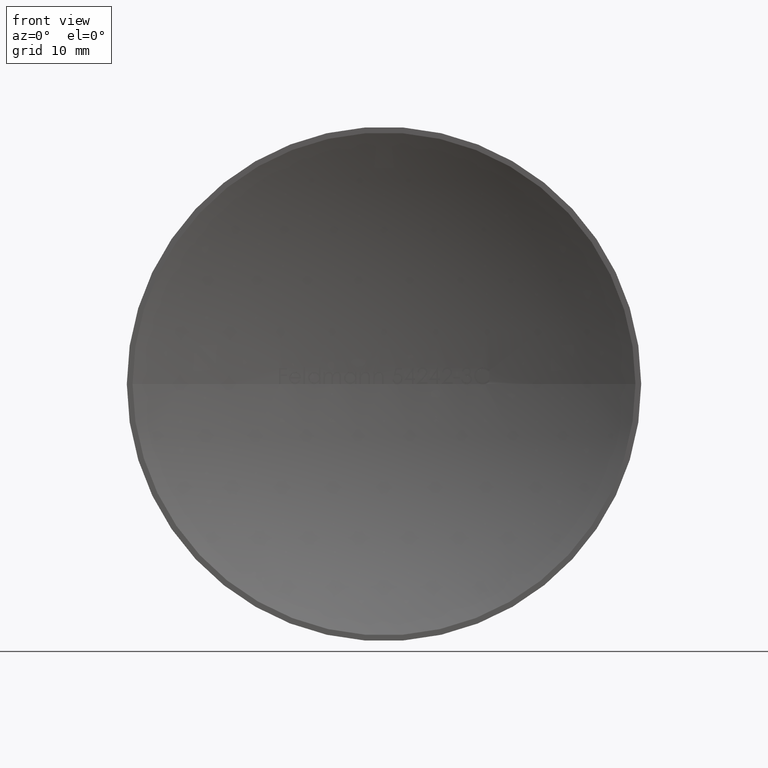
[diagram: clean part render]
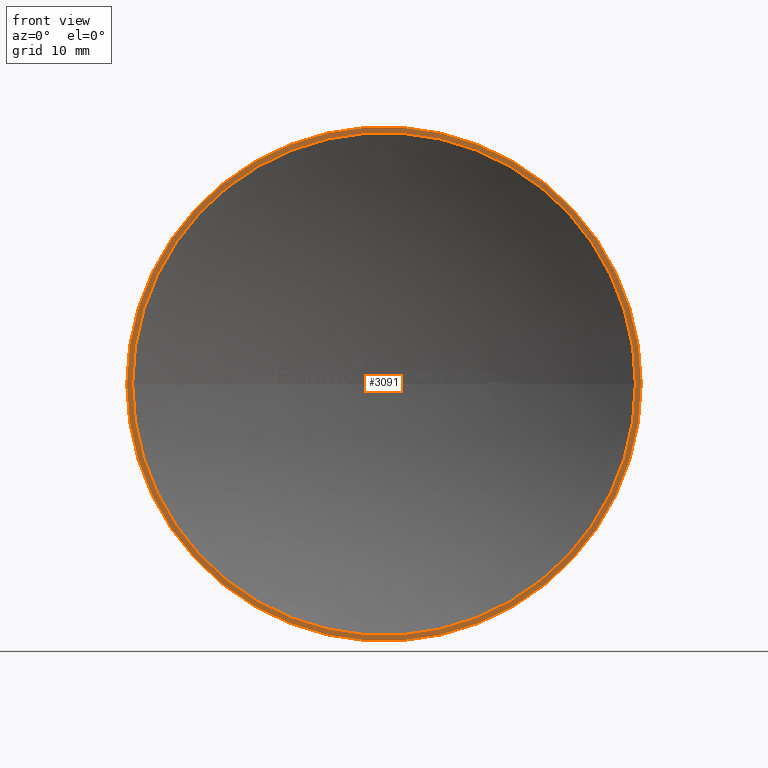
[diagram: same view with one face highlighted and labeled with its STEP entity id]
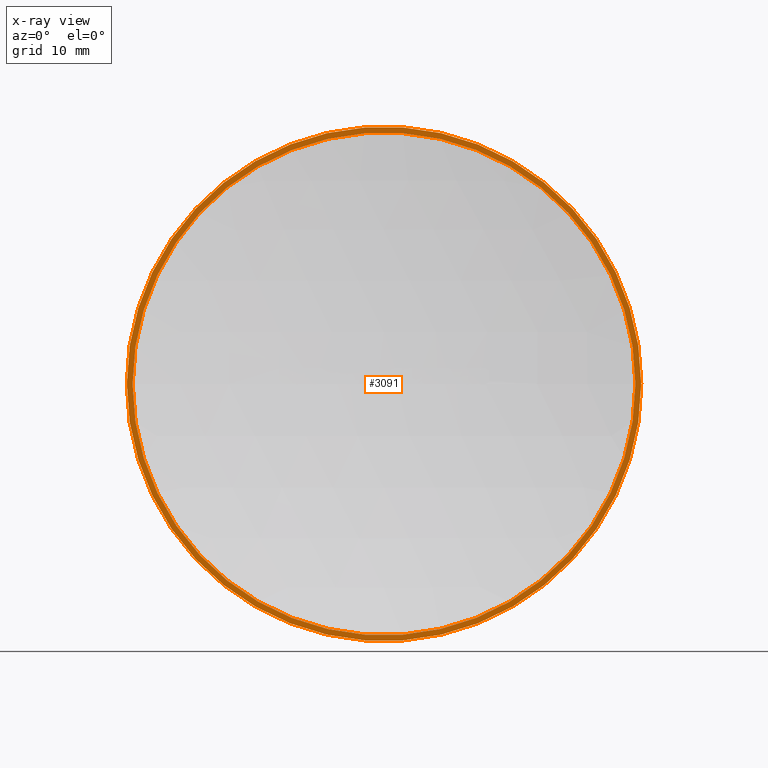
[diagram: x-ray of the same camera — body ghosted, the highlighted face saturated]
A machine part, front view. The second image highlights one B-rep face of the part: STEP entity #3091.
The next image is the same camera in x-ray: the body ghosted, the highlighted face saturated — about 0% of this face is hidden behind the body in this view.
In plain terms, the highlighted planar face has unit normal (-0, -1, 0).
Its self-contained STEP definition (entity closure, byte-faithful):
#741 = ORIENTED_EDGE ( 'NONE', *, *, #5430, .T. ) ;
#790 = AXIS2_PLACEMENT_3D ( 'NONE', #4415, #6351, #3546 ) ;
#924 = AXIS2_PLACEMENT_3D ( 'NONE', #10819, #11786, #8036 ) ;
#1357 = VERTEX_POINT ( 'NONE', #4271 ) ;
#2058 = DIRECTION ( 'NONE',  ( 1.000000000000000000, -6.932614350277812000E-015, 0.0000000000000000000 ) ) ;
#2311 = EDGE_LOOP ( 'NONE', ( #7252, #4399 ) ) ;
#2343 = EDGE_CURVE ( 'NONE', #2369, #1357, #9274, .T. ) ;
#2369 = VERTEX_POINT ( 'NONE', #10046 ) ;
#2628 = CIRCLE ( 'NONE', #790, 21.20000000000003500 ) ;
#2808 = CIRCLE ( 'NONE', #4004, 21.20000000000003500 ) ;
#3014 = AXIS2_PLACEMENT_3D ( 'NONE', #10608, #7790, #2058 ) ;
#3065 = AXIS2_PLACEMENT_3D ( 'NONE', #9876, #7090, #9755 ) ;
#3091 = ADVANCED_FACE ( 'NONE', ( #4548, #4408 ), #4254, .T. ) ;
#3546 = DIRECTION ( 'NONE',  ( 1.000000000000000000, -6.932614350277812000E-015, 0.0000000000000000000 ) ) ;
#3729 = CARTESIAN_POINT ( 'NONE',  ( 21.19999999999999900, -3.856737457803261500E-015, 0.0000000000000000000 ) ) ;
#3777 = CIRCLE ( 'NONE', #3014, 20.72293415518182500 ) ;
#4004 = AXIS2_PLACEMENT_3D ( 'NONE', #11210, #5476, #11167 ) ;
#4254 = PLANE ( 'NONE',  #924 ) ;
#4271 = CARTESIAN_POINT ( 'NONE',  ( -20.72293415518153000, 2.826009576832199400E-013, 0.0000000000000000000 ) ) ;
#4399 = ORIENTED_EDGE ( 'NONE', *, *, #2343, .F. ) ;
#4408 = FACE_BOUND ( 'NONE', #2311, .T. ) ;
#4415 = CARTESIAN_POINT ( 'NONE',  ( -3.466307175138799600E-014, 1.431146867680865900E-013, 0.0000000000000000000 ) ) ;
#4545 = VERTEX_POINT ( 'NONE', #9775 ) ;
#4548 = FACE_OUTER_BOUND ( 'NONE', #10818, .T. ) ;
#5430 = EDGE_CURVE ( 'NONE', #4545, #8287, #2808, .T. ) ;
#5476 = DIRECTION ( 'NONE',  ( -6.932614350277811200E-015, -1.000000000000000000, -0.0000000000000000000 ) ) ;
#6351 = DIRECTION ( 'NONE',  ( -6.932614350277811200E-015, -1.000000000000000000, -0.0000000000000000000 ) ) ;
#7090 = DIRECTION ( 'NONE',  ( -6.932614350277811200E-015, -1.000000000000000000, -0.0000000000000000000 ) ) ;
#7252 = ORIENTED_EDGE ( 'NONE', *, *, #8700, .F. ) ;
#7782 = EDGE_CURVE ( 'NONE', #8287, #4545, #2628, .T. ) ;
#7790 = DIRECTION ( 'NONE',  ( -6.932614350277811200E-015, -1.000000000000000000, -0.0000000000000000000 ) ) ;
#8036 = DIRECTION ( 'NONE',  ( 1.000000000000000000, -6.932614350277811200E-015, 0.0000000000000000000 ) ) ;
#8287 = VERTEX_POINT ( 'NONE', #3729 ) ;
#8439 = ORIENTED_EDGE ( 'NONE', *, *, #7782, .T. ) ;
#8700 = EDGE_CURVE ( 'NONE', #1357, #2369, #3777, .T. ) ;
#9274 = CIRCLE ( 'NONE', #3065, 20.72293415518182500 ) ;
#9755 = DIRECTION ( 'NONE',  ( 1.000000000000000000, -6.932614350277812000E-015, 0.0000000000000000000 ) ) ;
#9775 = CARTESIAN_POINT ( 'NONE',  ( -21.20000000000007000, 2.900861109939764400E-013, 2.596251214192394300E-015 ) ) ;
#9876 = CARTESIAN_POINT ( 'NONE',  ( -3.466307175138804000E-014, 1.370431546021677600E-013, 0.0000000000000000000 ) ) ;
#10046 = CARTESIAN_POINT ( 'NONE',  ( 20.72293415518179000, -3.310478050953976700E-015, -2.537827498208437800E-015 ) ) ;
#10608 = CARTESIAN_POINT ( 'NONE',  ( -3.466307175138804000E-014, 1.370431546021677600E-013, 0.0000000000000000000 ) ) ;
#10818 = EDGE_LOOP ( 'NONE', ( #8439, #741 ) ) ;
#10819 = CARTESIAN_POINT ( 'NONE',  ( 21.19999999999999900, -6.935580975598752900E-015, 0.0000000000000000000 ) ) ;
#11167 = DIRECTION ( 'NONE',  ( 1.000000000000000000, -6.932614350277812000E-015, 0.0000000000000000000 ) ) ;
#11210 = CARTESIAN_POINT ( 'NONE',  ( -3.466307175138799600E-014, 1.431146867680865900E-013, 0.0000000000000000000 ) ) ;
#11786 = DIRECTION ( 'NONE',  ( -6.932614350277811200E-015, -1.000000000000000000, 0.0000000000000000000 ) ) ;